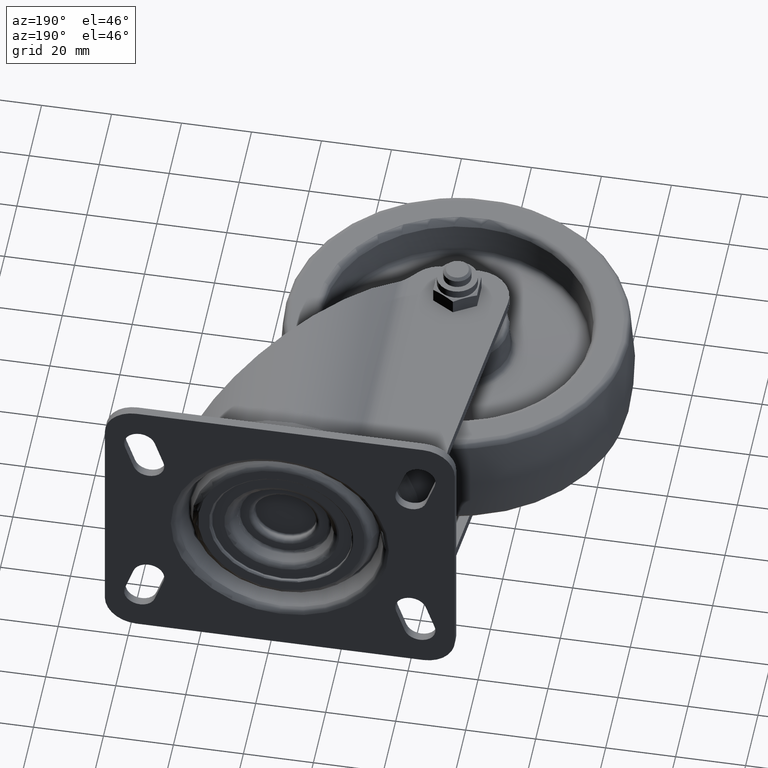
[diagram: clean part render]
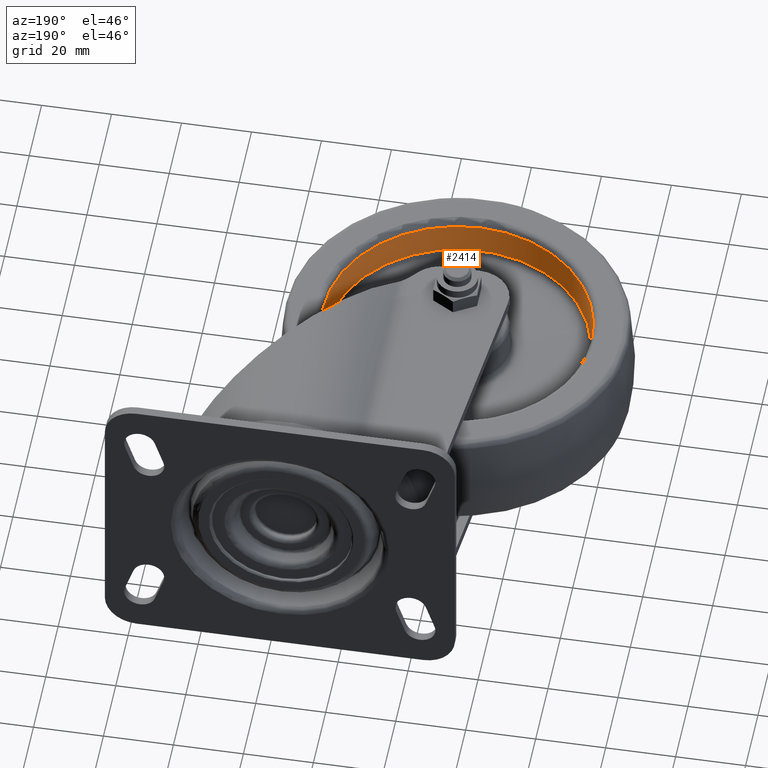
[diagram: same view with one face highlighted and labeled with its STEP entity id]
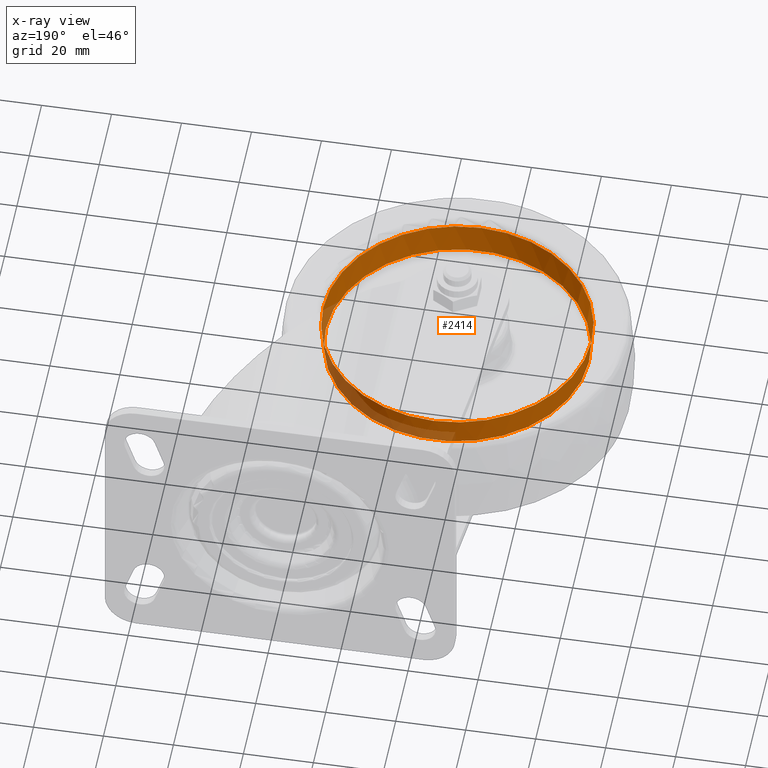
[diagram: x-ray of the same camera — body ghosted, the highlighted face saturated]
A machine part, auxiliary view. The second image highlights one B-rep face of the part: STEP entity #2414.
The next image is the same camera in x-ray: the body ghosted, the highlighted face saturated — about 15% of this face is hidden behind the body in this view.
In plain terms, the highlighted conical surface has half-angle 5 deg.
Its self-contained STEP definition (entity closure, byte-faithful):
#60=CONICAL_SURFACE('',#2708,37.9688024622162,0.0872664625997168);
#284=FACE_OUTER_BOUND('',#444,.T.);
#444=EDGE_LOOP('',(#2020,#2021,#2022,#2023,#2024,#2025));
#598=CIRCLE('',#2706,38.3402729518514);
#599=CIRCLE('',#2707,38.3402729518514);
#600=CIRCLE('',#2709,37.5973319725811);
#601=CIRCLE('',#2710,37.5973319725811);
#756=LINE('',#4376,#890);
#890=VECTOR('',#3386,37.9688024622162);
#1084=VERTEX_POINT('',#4366);
#1085=VERTEX_POINT('',#4368);
#1086=VERTEX_POINT('',#4372);
#1087=VERTEX_POINT('',#4373);
#1401=EDGE_CURVE('',#1084,#1085,#598,.T.);
#1402=EDGE_CURVE('',#1085,#1084,#599,.T.);
#1403=EDGE_CURVE('',#1086,#1087,#600,.T.);
#1404=EDGE_CURVE('',#1087,#1086,#601,.T.);
#1405=EDGE_CURVE('',#1086,#1085,#756,.T.);
#2020=ORIENTED_EDGE('',*,*,#1403,.T.);
#2021=ORIENTED_EDGE('',*,*,#1404,.T.);
#2022=ORIENTED_EDGE('',*,*,#1405,.T.);
#2023=ORIENTED_EDGE('',*,*,#1401,.F.);
#2024=ORIENTED_EDGE('',*,*,#1402,.F.);
#2025=ORIENTED_EDGE('',*,*,#1405,.F.);
#2414=ADVANCED_FACE('',(#284),#60,.F.);
#2706=AXIS2_PLACEMENT_3D('',#4369,#3376,#3377);
#2707=AXIS2_PLACEMENT_3D('',#4370,#3378,#3379);
#2708=AXIS2_PLACEMENT_3D('',#4371,#3380,#3381);
#2709=AXIS2_PLACEMENT_3D('',#4374,#3382,#3383);
#2710=AXIS2_PLACEMENT_3D('',#4375,#3384,#3385);
#3376=DIRECTION('center_axis',(0.,0.,-1.));
#3377=DIRECTION('ref_axis',(1.,0.,0.));
#3378=DIRECTION('center_axis',(0.,0.,-1.));
#3379=DIRECTION('ref_axis',(1.,0.,0.));
#3380=DIRECTION('center_axis',(0.,0.,1.));
#3381=DIRECTION('ref_axis',(1.,0.,0.));
#3382=DIRECTION('center_axis',(0.,0.,-1.));
#3383=DIRECTION('ref_axis',(1.,0.,0.));
#3384=DIRECTION('center_axis',(0.,0.,-1.));
#3385=DIRECTION('ref_axis',(1.,0.,0.));
#3386=DIRECTION('',(-0.0871557427476585,-1.0673500138323E-17,0.996194698091745));
#4366=CARTESIAN_POINT('',(38.3402729518514,-9.39034837282428E-15,13.1743114854953));
#4368=CARTESIAN_POINT('',(-38.3402729518513,-4.69532925489206E-15,13.1743114854953));
#4369=CARTESIAN_POINT('Origin',(0.,0.,13.1743114854953));
#4370=CARTESIAN_POINT('Origin',(0.,0.,13.1743114854953));
#4371=CARTESIAN_POINT('Origin',(0.,0.,8.92838436003332));
#4372=CARTESIAN_POINT('',(-37.5973319725811,-4.6041931620392E-15,4.68245723457132));
#4373=CARTESIAN_POINT('',(37.5973319725811,-4.60434522567019E-15,4.68245723457132));
#4374=CARTESIAN_POINT('Origin',(0.,0.,4.68245723457132));
#4375=CARTESIAN_POINT('Origin',(0.,0.,4.68245723457132));
#4376=CARTESIAN_POINT('',(-37.9688024622162,-4.64983724028112E-15,8.92838436003332));